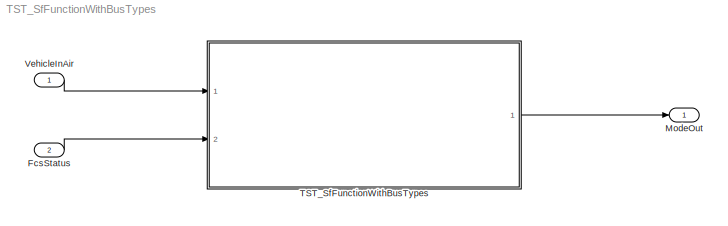
MODEL TST_SfFunctionWithBusTypes
KIND model
BLOCK [Inport] FcsStatus
  IconDisplay = Port number
  OutDataTypeStr = Bus: FCS_FlightControlSystem_Status
  Port = 2
  SID = 168
BLOCK [Outport] ModeOut
  IconDisplay = Port number
  OutDataTypeStr = uint32
  PortDimensions = 1
  SID = 169
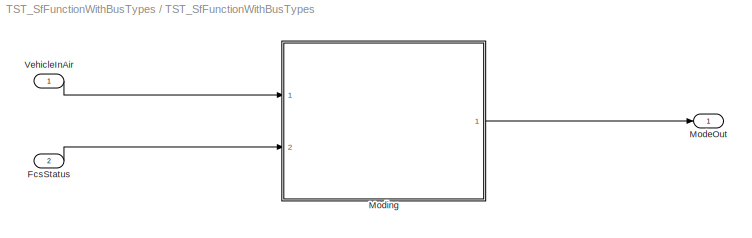
BLOCK [SubSystem] TST_SfFunctionWithBusTypes
  Ports = [2, 1]
  RequestExecContextInheritance = off
  SID = 160
  TreatAsAtomicUnit = on
BLOCK [Inport] TST_SfFunctionWithBusTypes/FcsStatus
  IconDisplay = Port number
  OutDataTypeStr = Bus: FCS_FlightControlSystem_Status
  Port = 2
  SID = 164
BLOCK [Outport] TST_SfFunctionWithBusTypes/ModeOut
  IconDisplay = Port number
  OutDataTypeStr = uint32
  PortDimensions = 1
  SID = 166
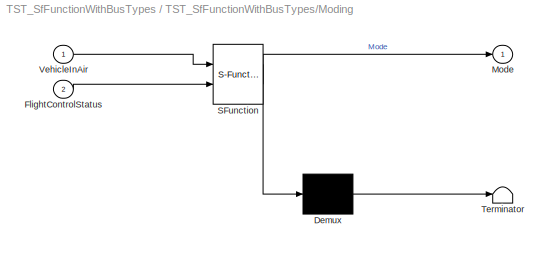
BLOCK [SubSystem] TST_SfFunctionWithBusTypes/Moding
  ErrorFcn = Stateflow.Translate.translate
  PermitHierarchicalResolution = ExplicitOnly
  Ports = [2, 1]
  RequestExecContextInheritance = off
  SFBlockType = Chart
  SID = 165
  TreatAsAtomicUnit = on
BLOCK [Demux] TST_SfFunctionWithBusTypes/Moding/ Demux 
  Outputs = 1
  Ports = [1, 1]
  SID = 165::156
BLOCK [S-Function] TST_SfFunctionWithBusTypes/Moding/ SFunction 
  EnableBusSupport = off
  FunctionName = sf_sfun
  PortCounts = [2 2]
  Ports = [2, 2]
  SFcnIsStateOwnerBlock = off
  SFunctionDeploymentMode = off
  SID = 165::155
  Tag = Stateflow S-Function 1
BLOCK [Terminator] TST_SfFunctionWithBusTypes/Moding/ Terminator 
  SID = 165::157
BLOCK [Inport] TST_SfFunctionWithBusTypes/Moding/FlightControlStatus
  IconDisplay = Port number
  Port = 2
  SID = 165::145
BLOCK [Outport] TST_SfFunctionWithBusTypes/Moding/Mode
  IconDisplay = Port number
  SID = 165::150
BLOCK [Inport] TST_SfFunctionWithBusTypes/Moding/VehicleInAir
  IconDisplay = Port number
  SID = 165::144
BLOCK [Inport] TST_SfFunctionWithBusTypes/VehicleInAir
  IconDisplay = Port number
  OutDataTypeStr = boolean
  PortDimensions = 1
  SID = 163
BLOCK [Inport] VehicleInAir
  IconDisplay = Port number
  OutDataTypeStr = boolean
  PortDimensions = 1
  SID = 167
LINE FcsStatus:1 -> TST_SfFunctionWithBusTypes:2
LINE TST_SfFunctionWithBusTypes/FcsStatus:1 -> TST_SfFunctionWithBusTypes/Moding:2
LINE TST_SfFunctionWithBusTypes/Moding/ Demux :1 -> TST_SfFunctionWithBusTypes/Moding/ Terminator :1
LINE TST_SfFunctionWithBusTypes/Moding/ SFunction :1 -> TST_SfFunctionWithBusTypes/Moding/ Demux :1
LINE TST_SfFunctionWithBusTypes/Moding/ SFunction :2 -> TST_SfFunctionWithBusTypes/Moding/Mode:1
LINE TST_SfFunctionWithBusTypes/Moding/FlightControlStatus:1 -> TST_SfFunctionWithBusTypes/Moding/ SFunction :2
LINE TST_SfFunctionWithBusTypes/Moding/VehicleInAir:1 -> TST_SfFunctionWithBusTypes/Moding/ SFunction :1
LINE TST_SfFunctionWithBusTypes/Moding:1 -> TST_SfFunctionWithBusTypes/ModeOut:1
LINE TST_SfFunctionWithBusTypes/VehicleInAir:1 -> TST_SfFunctionWithBusTypes/Moding:1
LINE TST_SfFunctionWithBusTypes:1 -> ModeOut:1
LINE VehicleInAir:1 -> TST_SfFunctionWithBusTypes:1
CHART TST_SfFunctionWithBusTypes/Moding states=2 transitions=4
  STATE_LABEL 'UpdateFeedthroughParameters(FcsStatusInput)'
  STATE_LABEL 'Main\\nentry:\\nUpdateFeedthroughParameters(FlightControlStatus);'
